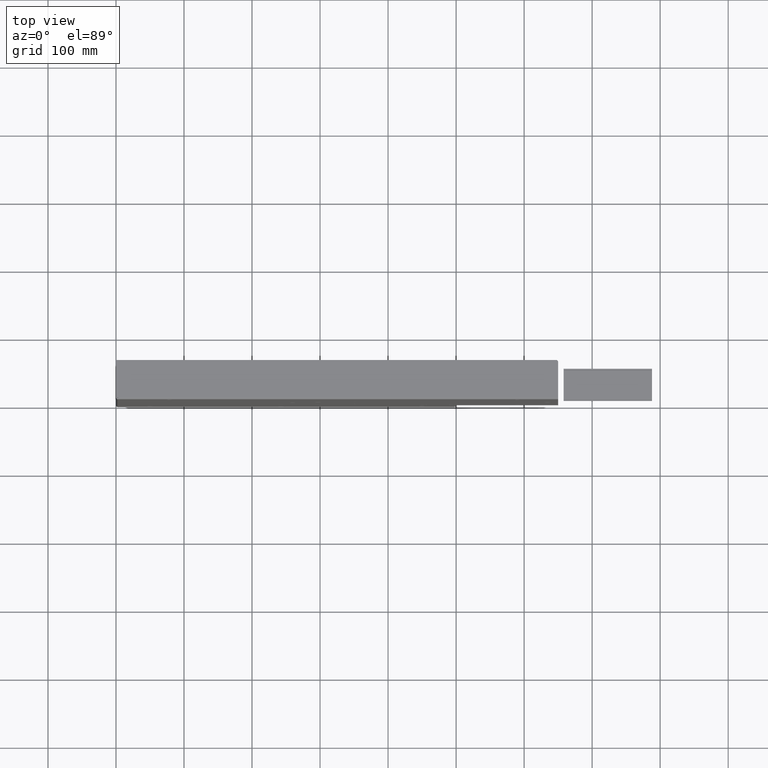
[diagram: clean part render]
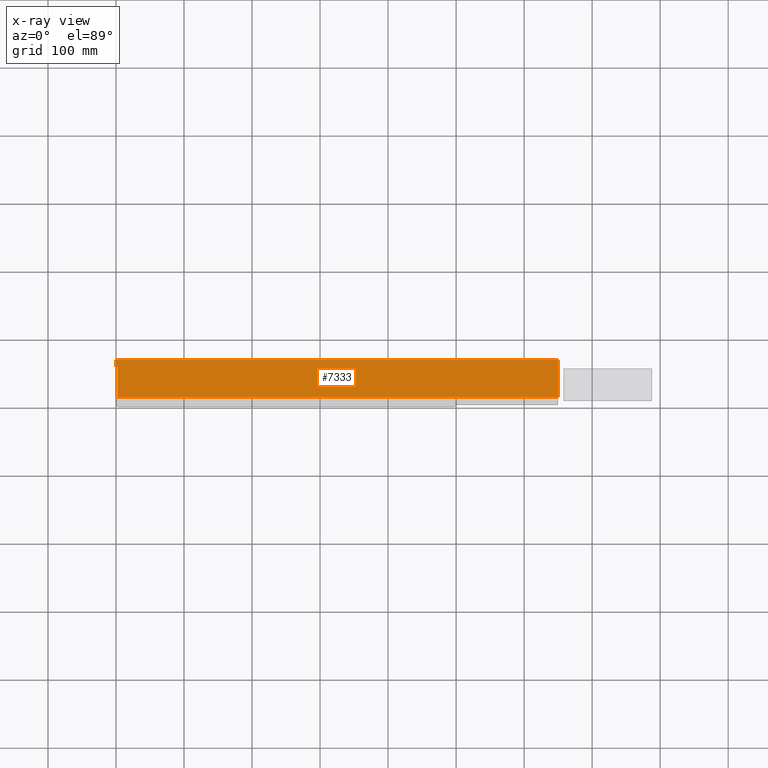
[diagram: x-ray — body ghosted, one internal face saturated and labeled with its STEP entity id]
A machine part, top view, then the same camera in x-ray: the body is ghosted and one INTERNAL B-rep face — a face not visible from any outside direction — is saturated and labeled: STEP entity #7333.
In plain terms, the highlighted planar face has unit normal (0, 0, 1).
Its self-contained STEP definition (entity closure, byte-faithful):
#5071=DIRECTION('',(0.E0,1.E0,0.E0));
#5072=VECTOR('',#5071,5.3E1);
#5073=CARTESIAN_POINT('',(2.48E2,3.E0,0.E0));
#5074=LINE('',#5073,#5072);
#5099=DIRECTION('',(0.E0,0.E0,-1.E0));
#5100=VECTOR('',#5099,6.478E2);
#5101=CARTESIAN_POINT('',(2.48E2,5.8E1,6.498E2));
#5102=LINE('',#5101,#5100);
#5134=DIRECTION('',(-2.842170943041E-14,7.860379014347E-14,1.E0));
#5135=VECTOR('',#5134,9.999999999999E-1);
#5136=CARTESIAN_POINT('',(2.48E2,3.E0,6.47E2));
#5137=LINE('',#5136,#5135);
#5141=DIRECTION('',(0.E0,0.E0,1.E0));
#5142=VECTOR('',#5141,6.47E2);
#5143=CARTESIAN_POINT('',(2.48E2,3.E0,0.E0));
#5144=LINE('',#5143,#5142);
#5148=DIRECTION('',(0.E0,-7.071067811865E-1,-7.071067811866E-1));
#5149=VECTOR('',#5148,2.828427124746E0);
#5150=CARTESIAN_POINT('',(2.48E2,5.8E1,2.E0));
#5151=LINE('',#5150,#5149);
#5155=DIRECTION('',(-1.136868377216E-14,-1.E0,0.E0));
#5156=VECTOR('',#5155,1.E1);
#5157=CARTESIAN_POINT('',(2.48E2,5.8E1,6.498E2));
#5158=LINE('',#5157,#5156);
#5162=DIRECTION('',(0.E0,0.E0,-1.E0));
#5163=VECTOR('',#5162,1.8E0);
#5164=CARTESIAN_POINT('',(2.48E2,4.8E1,6.498E2));
#5165=LINE('',#5164,#5163);
#5169=DIRECTION('',(0.E0,1.E0,0.E0));
#5170=VECTOR('',#5169,4.5E1);
#5171=CARTESIAN_POINT('',(2.48E2,3.E0,6.48E2));
#5172=LINE('',#5171,#5170);
#6861=CARTESIAN_POINT('',(2.48E2,5.8E1,2.E0));
#6862=VERTEX_POINT('',#6861);
#6863=CARTESIAN_POINT('',(2.48E2,5.6E1,0.E0));
#6864=VERTEX_POINT('',#6863);
#6867=CARTESIAN_POINT('',(2.48E2,3.E0,0.E0));
#6868=VERTEX_POINT('',#6867);
#7049=CARTESIAN_POINT('',(2.48E2,3.E0,6.47E2));
#7050=CARTESIAN_POINT('',(2.48E2,3.E0,6.48E2));
#7051=VERTEX_POINT('',#7049);
#7052=VERTEX_POINT('',#7050);
#7111=CARTESIAN_POINT('',(2.48E2,5.8E1,6.498E2));
#7112=CARTESIAN_POINT('',(2.48E2,4.8E1,6.498E2));
#7113=VERTEX_POINT('',#7111);
#7114=VERTEX_POINT('',#7112);
#7115=CARTESIAN_POINT('',(2.48E2,4.8E1,6.48E2));
#7116=VERTEX_POINT('',#7115);
#7317=CARTESIAN_POINT('',(2.48E2,3.E0,0.E0));
#7318=DIRECTION('',(1.E0,0.E0,0.E0));
#7319=DIRECTION('',(0.E0,1.E0,0.E0));
#7320=AXIS2_PLACEMENT_3D('',#7317,#7318,#7319);
#7321=PLANE('',#7320);
#7322=ORIENTED_EDGE('',*,*,#7181,.F.);
#7324=ORIENTED_EDGE('',*,*,#7323,.F.);
#7325=ORIENTED_EDGE('',*,*,#7241,.T.);
#7326=ORIENTED_EDGE('',*,*,#7256,.F.);
#7327=ORIENTED_EDGE('',*,*,#7270,.F.);
#7328=ORIENTED_EDGE('',*,*,#7284,.T.);
#7329=ORIENTED_EDGE('',*,*,#7298,.T.);
#7330=ORIENTED_EDGE('',*,*,#7310,.F.);
#7331=EDGE_LOOP('',(#7322,#7324,#7325,#7326,#7327,#7328,#7329,#7330));
#7332=FACE_OUTER_BOUND('',#7331,.F.);
#7181=EDGE_CURVE('',#7051,#7052,#5137,.T.);
#7241=EDGE_CURVE('',#6868,#6864,#5074,.T.);
#7256=EDGE_CURVE('',#6862,#6864,#5151,.T.);
#7270=EDGE_CURVE('',#7113,#6862,#5102,.T.);
#7284=EDGE_CURVE('',#7113,#7114,#5158,.T.);
#7298=EDGE_CURVE('',#7114,#7116,#5165,.T.);
#7310=EDGE_CURVE('',#7052,#7116,#5172,.T.);
#7323=EDGE_CURVE('',#6868,#7051,#5144,.T.);
#7333=ADVANCED_FACE('',(#7332),#7321,.F.);